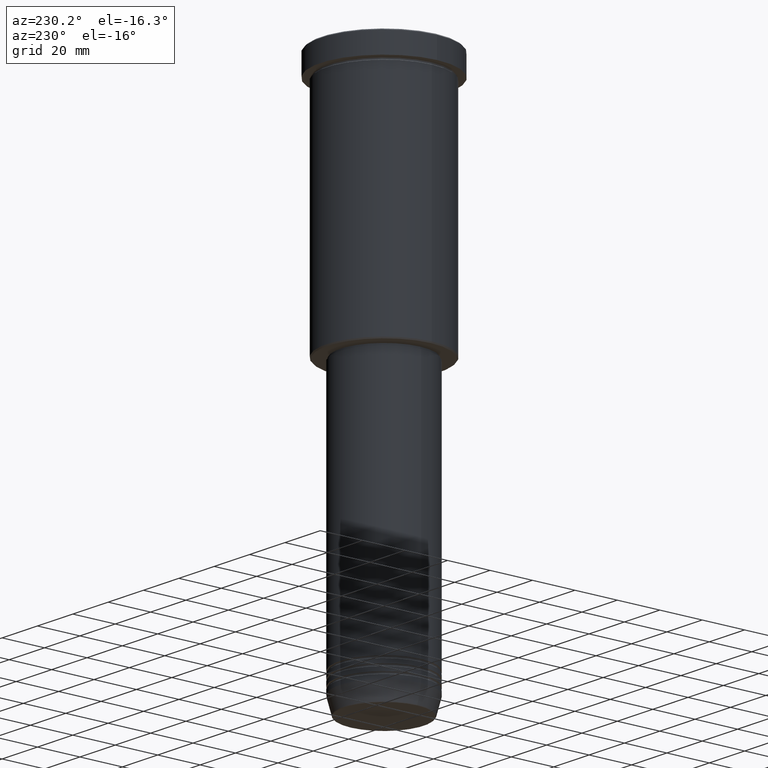
[diagram: clean part render]
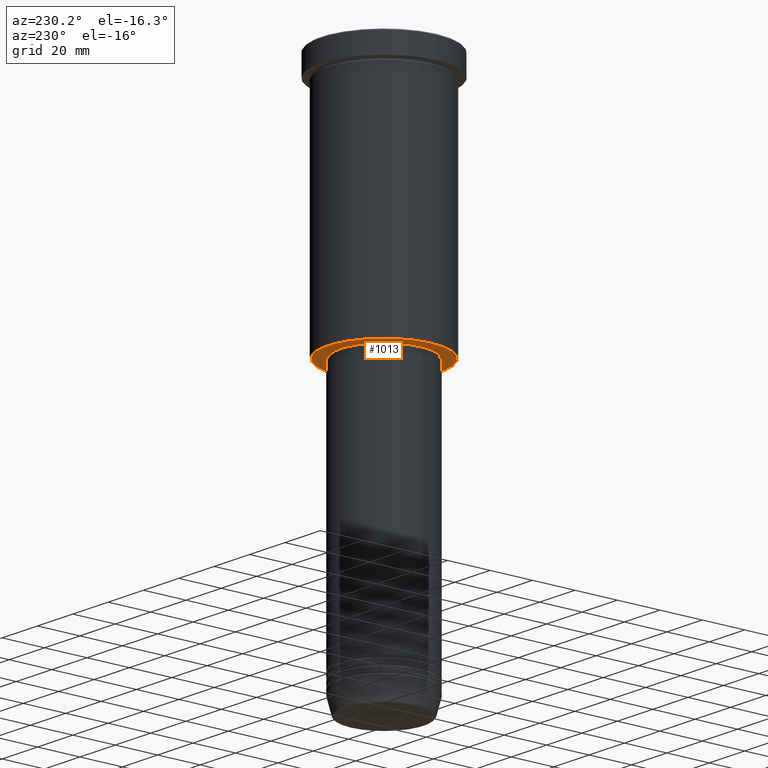
[diagram: same view with one face highlighted and labeled with its STEP entity id]
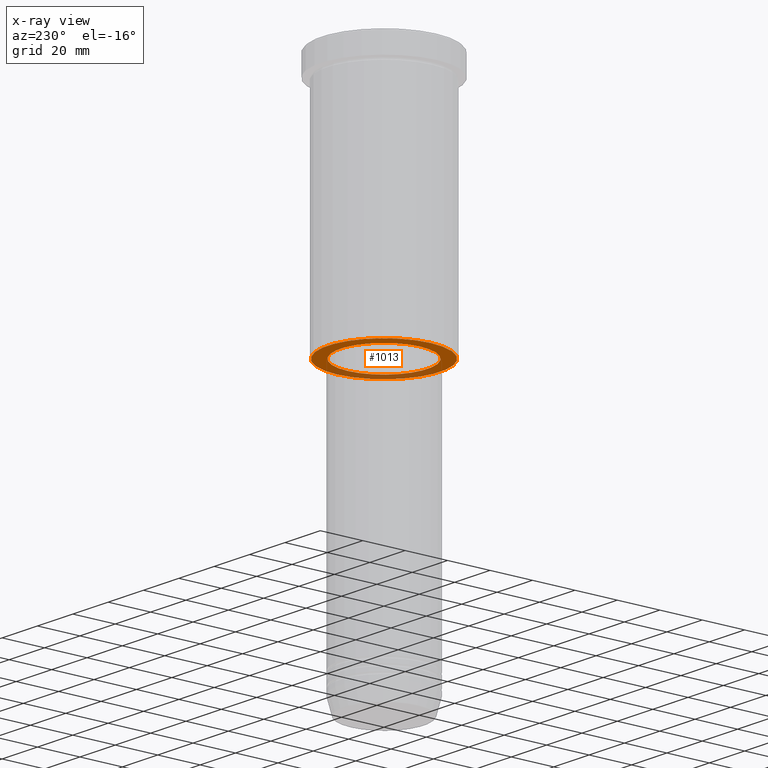
[diagram: x-ray of the same camera — body ghosted, the highlighted face saturated]
A machine part, auxiliary view. The second image highlights one B-rep face of the part: STEP entity #1013.
The next image is the same camera in x-ray: the body ghosted, the highlighted face saturated — about 27% of this face is hidden behind the body in this view.
In plain terms, the highlighted planar face has unit normal (0, 0, -1).
Its self-contained STEP definition (entity closure, byte-faithful):
#3 = PLANE ( 'NONE',  #149 ) ;
#41 = DIRECTION ( 'NONE',  ( -1.000000000000000000, 0.000000000000000000, 0.000000000000000000 ) ) ;
#78 = DIRECTION ( 'NONE',  ( -0.000000000000000000, -0.000000000000000000, 1.000000000000000000 ) ) ;
#101 = EDGE_CURVE ( 'NONE', #419, #262, #417, .T. ) ;
#102 = DIRECTION ( 'NONE',  ( -1.000000000000000000, 0.000000000000000000, -0.000000000000000000 ) ) ;
#115 = CARTESIAN_POINT ( 'NONE',  ( -26.50000000000002487, 3.275930187719171524E-15, -116.0000000000000000 ) ) ;
#149 = AXIS2_PLACEMENT_3D ( 'NONE', #642, #479, #102 ) ;
#214 = CARTESIAN_POINT ( 'NONE',  ( 0.000000000000000000, 0.000000000000000000, -116.0000000000000000 ) ) ;
#239 = DIRECTION ( 'NONE',  ( 0.000000000000000000, 0.000000000000000000, -1.000000000000000000 ) ) ;
#258 = EDGE_CURVE ( 'NONE', #578, #308, #934, .T. ) ;
#262 = VERTEX_POINT ( 'NONE', #1117 ) ;
#280 = AXIS2_PLACEMENT_3D ( 'NONE', #214, #239, #41 ) ;
#300 = DIRECTION ( 'NONE',  ( 0.000000000000000000, 0.000000000000000000, -1.000000000000000000 ) ) ;
#305 = DIRECTION ( 'NONE',  ( -1.000000000000000000, 0.000000000000000000, 0.000000000000000000 ) ) ;
#308 = VERTEX_POINT ( 'NONE', #577 ) ;
#324 = EDGE_LOOP ( 'NONE', ( #473, #1138 ) ) ;
#374 = AXIS2_PLACEMENT_3D ( 'NONE', #589, #300, #305 ) ;
#417 = CIRCLE ( 'NONE', #538, 20.50000000000000000 ) ;
#419 = VERTEX_POINT ( 'NONE', #718 ) ;
#473 = ORIENTED_EDGE ( 'NONE', *, *, #744, .T. ) ;
#479 = DIRECTION ( 'NONE',  ( 0.000000000000000000, 0.000000000000000000, -1.000000000000000000 ) ) ;
#538 = AXIS2_PLACEMENT_3D ( 'NONE', #990, #78, #816 ) ;
#547 = DIRECTION ( 'NONE',  ( 1.000000000000000000, 0.000000000000000000, 0.000000000000000000 ) ) ;
#577 = CARTESIAN_POINT ( 'NONE',  ( 26.50000000000002487, 0.000000000000000000, -116.0000000000000000 ) ) ;
#578 = VERTEX_POINT ( 'NONE', #115 ) ;
#589 = CARTESIAN_POINT ( 'NONE',  ( 0.000000000000000000, 0.000000000000000000, -116.0000000000000000 ) ) ;
#608 = AXIS2_PLACEMENT_3D ( 'NONE', #983, #1162, #547 ) ;
#609 = ORIENTED_EDGE ( 'NONE', *, *, #101, .T. ) ;
#642 = CARTESIAN_POINT ( 'NONE',  ( 0.000000000000000000, 27.00000000000000355, -116.0000000000000000 ) ) ;
#653 = FACE_BOUND ( 'NONE', #947, .T. ) ;
#718 = CARTESIAN_POINT ( 'NONE',  ( 20.50000000000000000, 0.000000000000000000, -116.0000000000000000 ) ) ;
#744 = EDGE_CURVE ( 'NONE', #308, #578, #1123, .T. ) ;
#816 = DIRECTION ( 'NONE',  ( 1.000000000000000000, 0.000000000000000000, 0.000000000000000000 ) ) ;
#832 = EDGE_CURVE ( 'NONE', #262, #419, #1106, .T. ) ;
#870 = ORIENTED_EDGE ( 'NONE', *, *, #832, .T. ) ;
#934 = CIRCLE ( 'NONE', #374, 26.50000000000002487 ) ;
#947 = EDGE_LOOP ( 'NONE', ( #609, #870 ) ) ;
#983 = CARTESIAN_POINT ( 'NONE',  ( 0.000000000000000000, 0.000000000000000000, -116.0000000000000000 ) ) ;
#990 = CARTESIAN_POINT ( 'NONE',  ( 0.000000000000000000, 0.000000000000000000, -116.0000000000000000 ) ) ;
#1013 = ADVANCED_FACE ( 'NONE', ( #1084, #653 ), #3, .T. ) ;
#1084 = FACE_OUTER_BOUND ( 'NONE', #324, .T. ) ;
#1106 = CIRCLE ( 'NONE', #608, 20.50000000000000000 ) ;
#1117 = CARTESIAN_POINT ( 'NONE',  ( -20.50000000000000000, 2.510525938252074481E-15, -116.0000000000000000 ) ) ;
#1123 = CIRCLE ( 'NONE', #280, 26.50000000000002487 ) ;
#1138 = ORIENTED_EDGE ( 'NONE', *, *, #258, .T. ) ;
#1162 = DIRECTION ( 'NONE',  ( -0.000000000000000000, -0.000000000000000000, 1.000000000000000000 ) ) ;